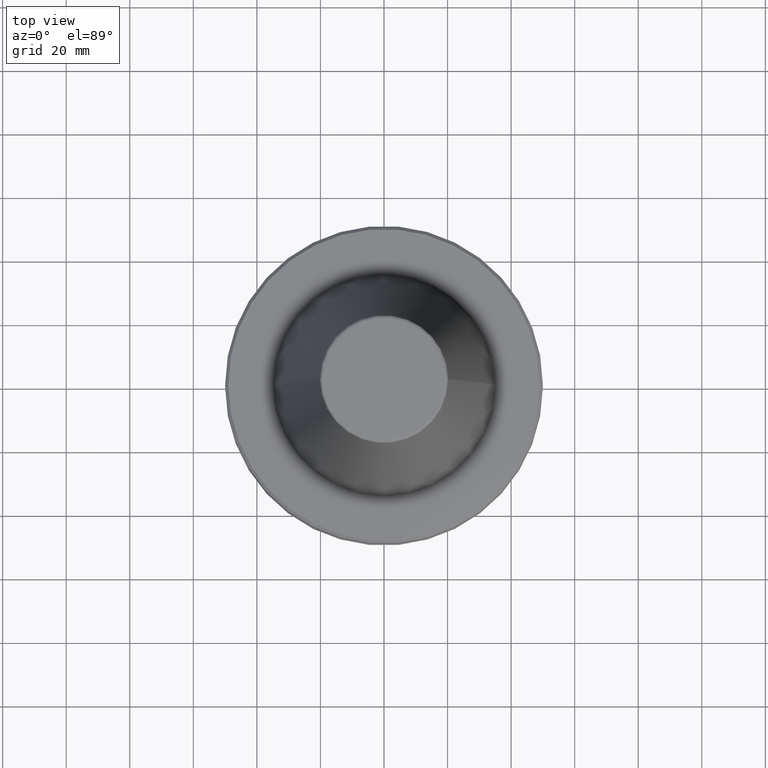
[diagram: clean part render]
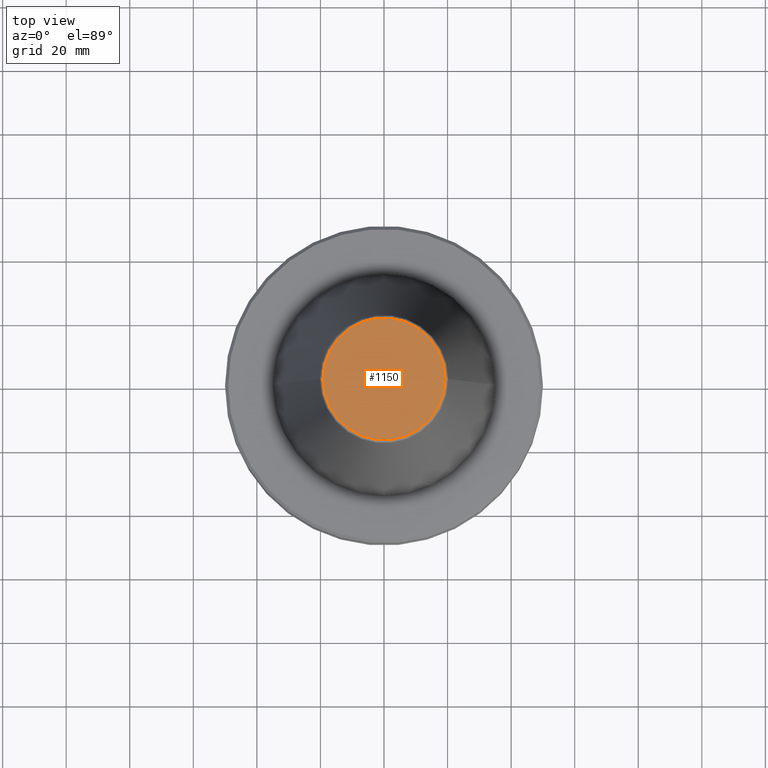
[diagram: same view with one face highlighted and labeled with its STEP entity id]
A machine part, top view. The second image highlights one B-rep face of the part: STEP entity #1150.
In plain terms, the highlighted planar face has unit normal (0, 0, -1).
Its self-contained STEP definition (entity closure, byte-faithful):
#32 = CIRCLE ( 'NONE', #276, 19.21428366486999200 ) ;
#50 = DIRECTION ( 'NONE',  ( -0.0000000000000000000, -0.0000000000000000000, 1.000000000000000000 ) ) ;
#108 = CARTESIAN_POINT ( 'NONE',  ( 19.21428366486999200, 0.0000000000000000000, 101.8000000000001000 ) ) ;
#138 = CARTESIAN_POINT ( 'NONE',  ( 0.0000000000000000000, 0.0000000000000000000, 101.8000000000001000 ) ) ;
#148 = CARTESIAN_POINT ( 'NONE',  ( 0.0000000000000000000, 19.21428366486999200, 101.8000000000001100 ) ) ;
#252 = DIRECTION ( 'NONE',  ( -1.000000000000000000, 0.0000000000000000000, -0.0000000000000000000 ) ) ;
#263 = CARTESIAN_POINT ( 'NONE',  ( -19.21428366486999200, 2.413662506824950600E-015, 101.8000000000001000 ) ) ;
#276 = AXIS2_PLACEMENT_3D ( 'NONE', #138, #50, #598 ) ;
#352 = VERTEX_POINT ( 'NONE', #263 ) ;
#406 = EDGE_LOOP ( 'NONE', ( #854, #731 ) ) ;
#535 = CARTESIAN_POINT ( 'NONE',  ( 0.0000000000000000000, 0.0000000000000000000, 101.8000000000001000 ) ) ;
#538 = FACE_OUTER_BOUND ( 'NONE', #406, .T. ) ;
#598 = DIRECTION ( 'NONE',  ( 1.000000000000000000, 0.0000000000000000000, 0.0000000000000000000 ) ) ;
#624 = DIRECTION ( 'NONE',  ( 1.000000000000000000, 0.0000000000000000000, 0.0000000000000000000 ) ) ;
#663 = VERTEX_POINT ( 'NONE', #108 ) ;
#706 = EDGE_CURVE ( 'NONE', #663, #352, #32, .T. ) ;
#731 = ORIENTED_EDGE ( 'NONE', *, *, #1145, .T. ) ;
#820 = CIRCLE ( 'NONE', #1047, 19.21428366486999200 ) ;
#823 = DIRECTION ( 'NONE',  ( 0.0000000000000000000, 0.0000000000000000000, -1.000000000000000000 ) ) ;
#828 = AXIS2_PLACEMENT_3D ( 'NONE', #148, #823, #252 ) ;
#854 = ORIENTED_EDGE ( 'NONE', *, *, #706, .T. ) ;
#999 = PLANE ( 'NONE',  #828 ) ;
#1047 = AXIS2_PLACEMENT_3D ( 'NONE', #535, #1189, #624 ) ;
#1145 = EDGE_CURVE ( 'NONE', #352, #663, #820, .T. ) ;
#1150 = ADVANCED_FACE ( 'NONE', ( #538 ), #999, .F. ) ;
#1189 = DIRECTION ( 'NONE',  ( -0.0000000000000000000, -0.0000000000000000000, 1.000000000000000000 ) ) ;